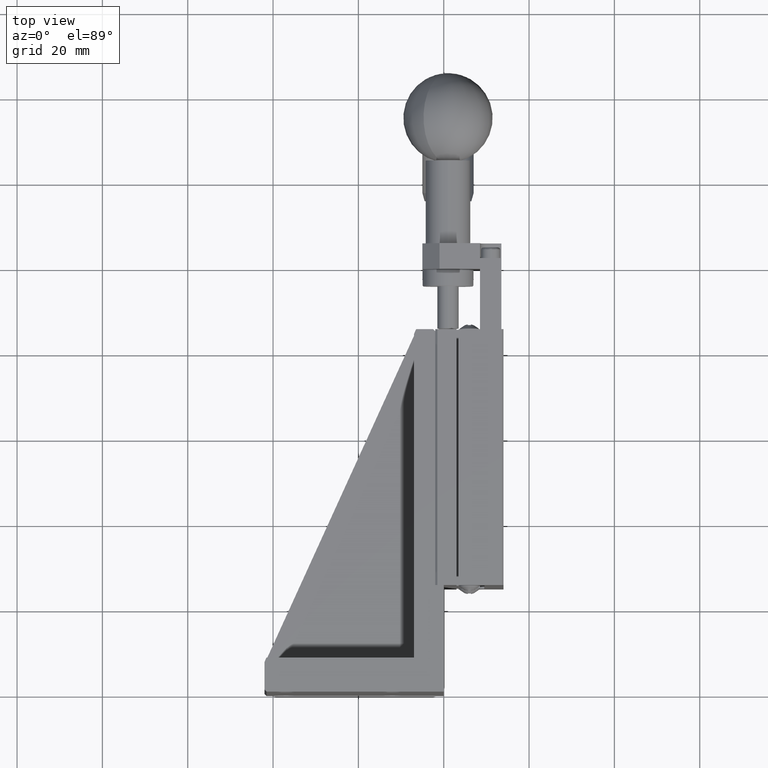
[diagram: clean part render]
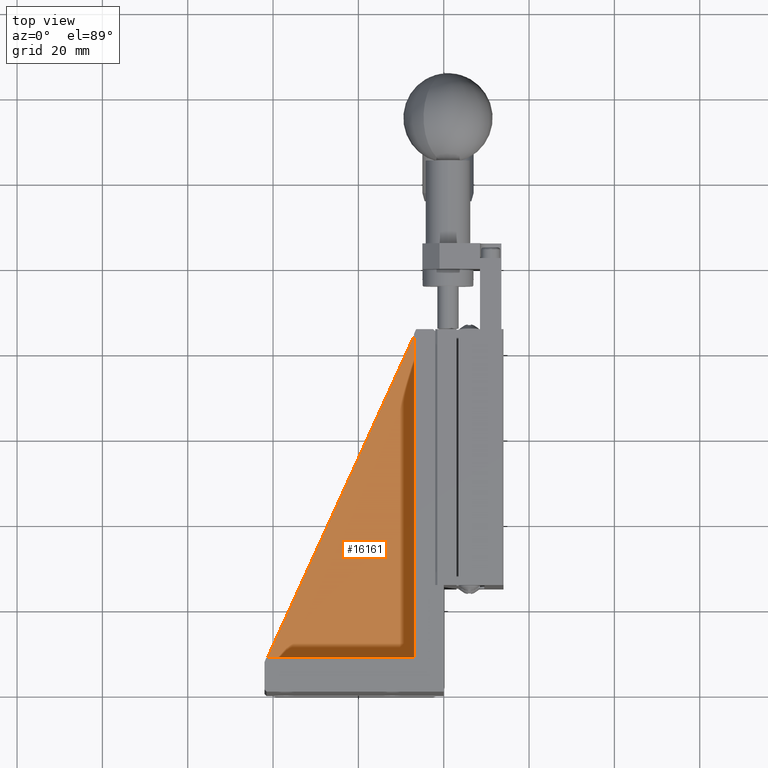
[diagram: same view with one face highlighted and labeled with its STEP entity id]
A machine part, top view. The second image highlights one B-rep face of the part: STEP entity #16161.
In plain terms, the highlighted planar face has unit normal (0, 0, 1).
Its self-contained STEP definition (entity closure, byte-faithful):
#3830 = CARTESIAN_POINT ( 'NONE',  ( -41.54428205128209584, 7.999999999999989342, -26.00000000000000355 ) ) ;
#6682 = LINE ( 'NONE', #85670, #92907 ) ;
#10824 = CARTESIAN_POINT ( 'NONE',  ( -7.000405820512837884, 83.80100000000001614, -26.00000000000000355 ) ) ;
#13115 = DIRECTION ( 'NONE',  ( 1.000000000000000000, 0.000000000000000000, -0.000000000000000000 ) ) ;
#14233 = EDGE_CURVE ( 'NONE', #74034, #93804, #24595, .T. ) ;
#15040 = LINE ( 'NONE', #87858, #85909 ) ;
#16161 = ADVANCED_FACE ( 'NONE', ( #57170 ), #34190, .T. ) ;
#20290 = CARTESIAN_POINT ( 'NONE',  ( -6.980000000000001315, 8.000000000000000000, -26.00000000000000355 ) ) ;
#23208 = VERTEX_POINT ( 'NONE', #3830 ) ;
#24595 = LINE ( 'NONE', #46146, #35663 ) ;
#29815 = EDGE_LOOP ( 'NONE', ( #44264, #75058, #93329, #68979 ) ) ;
#29855 = EDGE_CURVE ( 'NONE', #23208, #45455, #34518, .T. ) ;
#32279 = DIRECTION ( 'NONE',  ( 1.000000000000000000, 0.000000000000000000, -0.000000000000000000 ) ) ;
#34190 = PLANE ( 'NONE',  #47968 ) ;
#34518 = LINE ( 'NONE', #49824, #62462 ) ;
#35663 = VECTOR ( 'NONE', #32279, 1000.000000000000000 ) ;
#37044 = DIRECTION ( 'NONE',  ( -0.4146869836514022745, -0.9099641232433844928, 0.000000000000000000 ) ) ;
#44264 = ORIENTED_EDGE ( 'NONE', *, *, #14233, .F. ) ;
#45455 = VERTEX_POINT ( 'NONE', #83346 ) ;
#46127 = EDGE_CURVE ( 'NONE', #74034, #23208, #15040, .T. ) ;
#46146 = CARTESIAN_POINT ( 'NONE',  ( -6.980000000000001315, 83.80100000000000193, -26.00000000000000355 ) ) ;
#47968 = AXIS2_PLACEMENT_3D ( 'NONE', #20290, #78727, #13115 ) ;
#49824 = CARTESIAN_POINT ( 'NONE',  ( -6.980000000000001315, 8.000000000000000000, -26.00000000000000355 ) ) ;
#55526 = CARTESIAN_POINT ( 'NONE',  ( -6.980000000000001315, 83.80100000000001614, -26.00000000000000355 ) ) ;
#56560 = DIRECTION ( 'NONE',  ( 1.000000000000000000, 0.000000000000000000, -0.000000000000000000 ) ) ;
#57170 = FACE_OUTER_BOUND ( 'NONE', #29815, .T. ) ;
#62462 = VECTOR ( 'NONE', #56560, 1000.000000000000000 ) ;
#68979 = ORIENTED_EDGE ( 'NONE', *, *, #79044, .T. ) ;
#71814 = DIRECTION ( 'NONE',  ( -0.000000000000000000, 1.000000000000000000, 0.000000000000000000 ) ) ;
#74034 = VERTEX_POINT ( 'NONE', #10824 ) ;
#75058 = ORIENTED_EDGE ( 'NONE', *, *, #46127, .T. ) ;
#78727 = DIRECTION ( 'NONE',  ( 0.000000000000000000, 0.000000000000000000, 1.000000000000000000 ) ) ;
#79044 = EDGE_CURVE ( 'NONE', #45455, #93804, #6682, .T. ) ;
#83346 = CARTESIAN_POINT ( 'NONE',  ( -6.980000000000001315, 7.999999999999996447, -26.00000000000000355 ) ) ;
#85670 = CARTESIAN_POINT ( 'NONE',  ( -6.980000000000001315, 0.000000000000000000, -26.00000000000000355 ) ) ;
#85909 = VECTOR ( 'NONE', #37044, 1000.000000000000114 ) ;
#87858 = CARTESIAN_POINT ( 'NONE',  ( -7.000405820512839661, 83.80100000000001614, -26.00000000000000355 ) ) ;
#92907 = VECTOR ( 'NONE', #71814, 1000.000000000000000 ) ;
#93329 = ORIENTED_EDGE ( 'NONE', *, *, #29855, .T. ) ;
#93804 = VERTEX_POINT ( 'NONE', #55526 ) ;